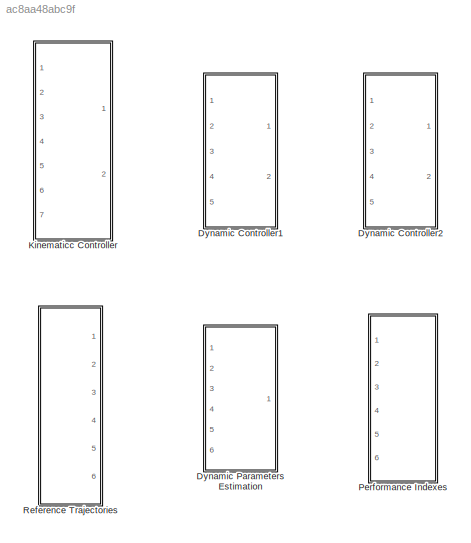
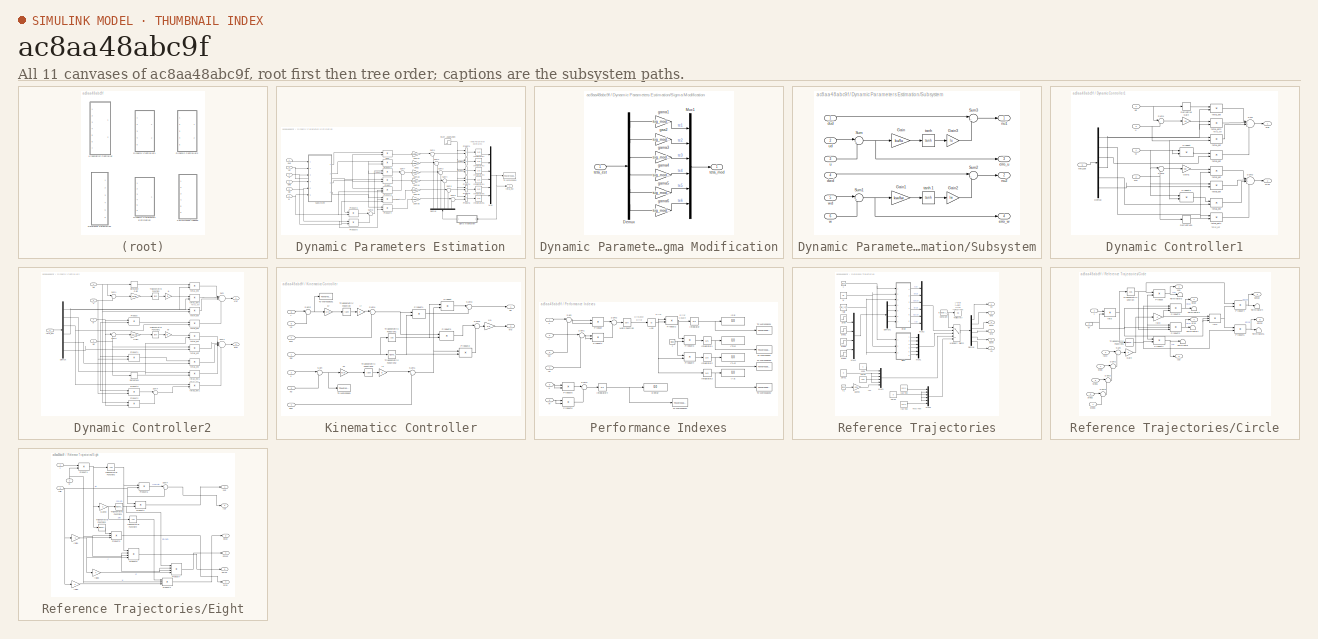
[diagram: thumbnail index - all 11 canvases of the model, root first then tree order]
MODEL slx_ac8aa48abc9f
KIND library
BLOCK [SubSystem] Dynamic Controller1
  FunctionWithSeparateData = off
  MaskHideContents = off
  MinAlgLoopOccurrences = off
  Opaque = off
  Ports = [5, 2]
  PropExecContextOutsideSubsystem = off
  RTWSystemCode = Auto
  RequestExecContextInheritance = off
BLOCK [Demux] Dynamic Controller1/Demux
  Outputs = 6
  Ports = [1, 6]
BLOCK [Derivative] Dynamic Controller1/Derivative
BLOCK [Derivative] Dynamic Controller1/Derivative1
BLOCK [Gain] Dynamic Controller1/Gain
  Gain = ku
BLOCK [Gain] Dynamic Controller1/Gain1
  Gain = kw
BLOCK [Product] Dynamic Controller1/Product
  InputSameDT = off
  Ports = [2, 1]
  RndMeth = Floor
BLOCK [Product] Dynamic Controller1/Product1
  InputSameDT = off
  Ports = [2, 1]
  RndMeth = Floor
BLOCK [Sum] Dynamic Controller1/Sum
  IconShape = round
  InputSameDT = off
  Inputs = |+++-
  OutDataTypeStr = Inherit: Inherit via internal rule
  Ports = [4, 1]
BLOCK [Sum] Dynamic Controller1/Sum1
  IconShape = round
  InputSameDT = off
  Inputs = |+-
  OutDataTypeStr = Inherit: Inherit via internal rule
  Ports = [2, 1]
BLOCK [Sum] Dynamic Controller1/Sum2
  IconShape = round
  InputSameDT = off
  Inputs = |++++
  OutDataTypeStr = Inherit: Inherit via internal rule
  Ports = [4, 1]
BLOCK [Sum] Dynamic Controller1/Sum3
  IconShape = round
  InputSameDT = off
  Inputs = |-+
  OutDataTypeStr = Inherit: Inherit via internal rule
  Ports = [2, 1]
BLOCK [Product] Dynamic Controller1/teta1_est
  InputSameDT = off
  Ports = [2, 1]
  RndMeth = Floor
BLOCK [Product] Dynamic Controller1/teta1_est2
  InputSameDT = off
  Ports = [2, 1]
  RndMeth = Floor
BLOCK [Product] Dynamic Controller1/teta2_est
  InputSameDT = off
  Ports = [2, 1]
  RndMeth = Floor
BLOCK [Product] Dynamic Controller1/teta2_est1
  InputSameDT = off
  Ports = [2, 1]
  RndMeth = Floor
BLOCK [Product] Dynamic Controller1/teta3_est
  InputSameDT = off
  Ports = [2, 1]
  RndMeth = Floor
BLOCK [Product] Dynamic Controller1/teta4_est
  InputSameDT = off
  Ports = [2, 1]
  RndMeth = Floor
BLOCK [Product] Dynamic Controller1/teta5_est
  InputSameDT = off
  Ports = [2, 1]
  RndMeth = Floor
BLOCK [Product] Dynamic Controller1/teta6_est
  InputSameDT = off
  Ports = [2, 1]
  RndMeth = Floor
BLOCK [Inport] Dynamic Controller1/teta_est
  IconDisplay = Port number
  Port = 5
BLOCK [Inport] Dynamic Controller1/u
  IconDisplay = Port number
  Port = 3
BLOCK [Inport] Dynamic Controller1/ud
  IconDisplay = Port number
BLOCK [Outport] Dynamic Controller1/uref
  IconDisplay = Port number
BLOCK [Inport] Dynamic Controller1/w
  IconDisplay = Port number
  Port = 4
BLOCK [Inport] Dynamic Controller1/wd
  IconDisplay = Port number
  Port = 2
BLOCK [Outport] Dynamic Controller1/wref
  IconDisplay = Port number
  Port = 2
BLOCK [SubSystem] Dynamic Controller2
  FunctionWithSeparateData = off
  MaskHideContents = off
  MinAlgLoopOccurrences = off
  Opaque = off
  Ports = [5, 2]
  PropExecContextOutsideSubsystem = off
  RTWSystemCode = Auto
  RequestExecContextInheritance = off
BLOCK [Demux] Dynamic Controller2/Demux
  Outputs = 6
  Ports = [1, 6]
BLOCK [Derivative] Dynamic Controller2/Derivative
BLOCK [Derivative] Dynamic Controller2/Derivative1
BLOCK [Gain] Dynamic Controller2/Gain
  Gain = ku/lu
BLOCK [Gain] Dynamic Controller2/Gain1
  Gain = kw/lw
BLOCK [Product] Dynamic Controller2/Product
  InputSameDT = off
  Ports = [2, 1]
  RndMeth = Floor
BLOCK [Product] Dynamic Controller2/Product1
  InputSameDT = off
  Ports = [2, 1]
  RndMeth = Floor
BLOCK [Product] Dynamic Controller2/Product2
  InputSameDT = off
  Ports = [2, 1]
  RndMeth = Floor
BLOCK [Product] Dynamic Controller2/Product3
  InputSameDT = off
  Ports = [2, 1]
  RndMeth = Floor
BLOCK [Sum] Dynamic Controller2/Sum
  IconShape = round
  InputSameDT = off
  Inputs = |+++-
  OutDataTypeStr = Inherit: Inherit via internal rule
  Ports = [4, 1]
BLOCK [Sum] Dynamic Controller2/Sum1
  IconShape = round
  InputSameDT = off
  Inputs = |+-
  OutDataTypeStr = Inherit: Inherit via internal rule
  Ports = [2, 1]
BLOCK [Sum] Dynamic Controller2/Sum2
  IconShape = round
  InputSameDT = off
  Inputs = |+++++
  OutDataTypeStr = Inherit: Inherit via internal rule
  Ports = [5, 1]
BLOCK [Sum] Dynamic Controller2/Sum3
  IconShape = round
  InputSameDT = off
  Inputs = |-+
  OutDataTypeStr = Inherit: Inherit via internal rule
  Ports = [2, 1]
BLOCK [Sum] Dynamic Controller2/Sum4
  IconShape = round
  InputSameDT = off
  Inputs = |-+
  OutDataTypeStr = Inherit: Inherit via internal rule
  Ports = [2, 1]
BLOCK [Trigonometry] Dynamic Controller2/Trigonometric Function
  Operator = tanh
  Ports = [1, 1]
BLOCK [Trigonometry] Dynamic Controller2/Trigonometric Function1
  Operator = tanh
  Ports = [1, 1]
BLOCK [Gain] Dynamic Controller2/lu
  Gain = lu
BLOCK [Gain] Dynamic Controller2/lw
  Gain = lw
BLOCK [Product] Dynamic Controller2/teta1_est
  InputSameDT = off
  Ports = [2, 1]
  RndMeth = Floor
BLOCK [Product] Dynamic Controller2/teta1_est2
  InputSameDT = off
  Ports = [2, 1]
  RndMeth = Floor
BLOCK [Product] Dynamic Controller2/teta2_est
  InputSameDT = off
  Ports = [2, 1]
  RndMeth = Floor
BLOCK [Product] Dynamic Controller2/teta2_est1
  InputSameDT = off
  Ports = [2, 1]
  RndMeth = Floor
BLOCK [Product] Dynamic Controller2/teta3_est
  InputSameDT = off
  Ports = [2, 1]
  RndMeth = Floor
BLOCK [Product] Dynamic Controller2/teta3_est1
  InputSameDT = off
  Ports = [2, 1]
  RndMeth = Floor
BLOCK [Product] Dynamic Controller2/teta4_est
  InputSameDT = off
  Ports = [2, 1]
  RndMeth = Floor
BLOCK [Product] Dynamic Controller2/teta5_est
  InputSameDT = off
  Ports = [2, 1]
  RndMeth = Floor
BLOCK [Product] Dynamic Controller2/teta6_est
  InputSameDT = off
  Ports = [2, 1]
  RndMeth = Floor
BLOCK [Inport] Dynamic Controller2/teta_est
  IconDisplay = Port number
  Port = 5
BLOCK [Inport] Dynamic Controller2/u
  IconDisplay = Port number
  Port = 3
BLOCK [Inport] Dynamic Controller2/ud
  IconDisplay = Port number
BLOCK [Outport] Dynamic Controller2/uref
  IconDisplay = Port number
BLOCK [Inport] Dynamic Controller2/w
  IconDisplay = Port number
  Port = 4
BLOCK [Inport] Dynamic Controller2/wd
  IconDisplay = Port number
  Port = 2
BLOCK [Outport] Dynamic Controller2/wref
  IconDisplay = Port number
  Port = 2
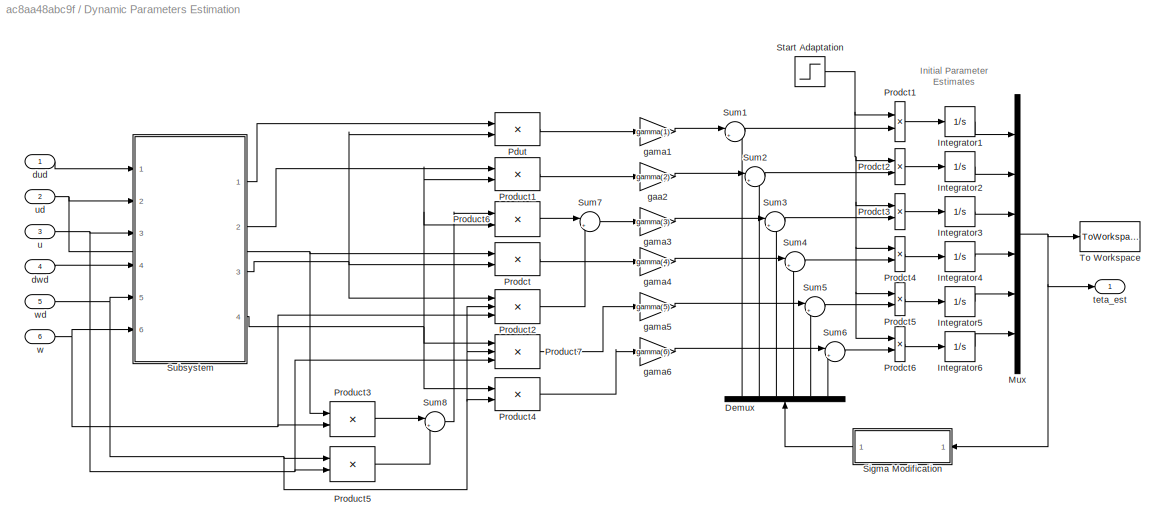
BLOCK [SubSystem] Dynamic Parameters Estimation
  FunctionWithSeparateData = off
  MaskHideContents = off
  MinAlgLoopOccurrences = off
  Opaque = off
  Ports = [6, 1]
  PropExecContextOutsideSubsystem = off
  RTWSystemCode = Auto
  RequestExecContextInheritance = off
BLOCK [Demux] Dynamic Parameters Estimation/Demux
  DisplayOption = bar
  Outputs = 6
  Ports = [1, 6]
BLOCK [Integrator] Dynamic Parameters Estimation/Integrator1
  InitialCondition = theta(1)
  Ports = [1, 1]
BLOCK [Integrator] Dynamic Parameters Estimation/Integrator2
  InitialCondition = theta(2)
  Ports = [1, 1]
BLOCK [Integrator] Dynamic Parameters Estimation/Integrator3
  InitialCondition = theta(3)
  Ports = [1, 1]
BLOCK [Integrator] Dynamic Parameters Estimation/Integrator4
  InitialCondition = theta(4)
  Ports = [1, 1]
BLOCK [Integrator] Dynamic Parameters Estimation/Integrator5
  InitialCondition = theta(5)
  Ports = [1, 1]
BLOCK [Integrator] Dynamic Parameters Estimation/Integrator6
  InitialCondition = theta(6)
  Ports = [1, 1]
BLOCK [Mux] Dynamic Parameters Estimation/Mux
  DisplayOption = bar
  Inputs = 6
  Ports = [6, 1]
BLOCK [Product] Dynamic Parameters Estimation/Pdut
  InputSameDT = off
  Ports = [2, 1]
  RndMeth = Floor
BLOCK [Product] Dynamic Parameters Estimation/Prodct
  InputSameDT = off
  Ports = [2, 1]
  RndMeth = Floor
BLOCK [Product] Dynamic Parameters Estimation/Prodct1
  InputSameDT = off
  Ports = [2, 1]
  RndMeth = Floor
BLOCK [Product] Dynamic Parameters Estimation/Prodct2
  InputSameDT = off
  Ports = [2, 1]
  RndMeth = Floor
BLOCK [Product] Dynamic Parameters Estimation/Prodct3
  InputSameDT = off
  Ports = [2, 1]
  RndMeth = Floor
BLOCK [Product] Dynamic Parameters Estimation/Prodct4
  InputSameDT = off
  Ports = [2, 1]
  RndMeth = Floor
BLOCK [Product] Dynamic Parameters Estimation/Prodct5
  InputSameDT = off
  Ports = [2, 1]
  RndMeth = Floor
BLOCK [Product] Dynamic Parameters Estimation/Prodct6
  InputSameDT = off
  Ports = [2, 1]
  RndMeth = Floor
BLOCK [Product] Dynamic Parameters Estimation/Product1
  InputSameDT = off
  Ports = [2, 1]
  RndMeth = Floor
BLOCK [Product] Dynamic Parameters Estimation/Product2
  InputSameDT = off
  Inputs = 3
  Ports = [3, 1]
  RndMeth = Floor
BLOCK [Product] Dynamic Parameters Estimation/Product3
  InputSameDT = off
  Ports = [2, 1]
  RndMeth = Floor
BLOCK [Product] Dynamic Parameters Estimation/Product4
  InputSameDT = off
  Ports = [2, 1]
  RndMeth = Floor
BLOCK [Product] Dynamic Parameters Estimation/Product5
  InputSameDT = off
  Ports = [2, 1]
  RndMeth = Floor
BLOCK [Product] Dynamic Parameters Estimation/Product6
  InputSameDT = off
  Ports = [2, 1]
  RndMeth = Floor
BLOCK [Product] Dynamic Parameters Estimation/Product7
  InputSameDT = off
  Inputs = 3
  Ports = [3, 1]
  RndMeth = Floor
BLOCK [SubSystem] Dynamic Parameters Estimation/Sigma Modification
  FunctionWithSeparateData = off
  MaskHideContents = off
  MinAlgLoopOccurrences = off
  Opaque = off
  Ports = [1, 1]
  PropExecContextOutsideSubsystem = off
  RTWSystemCode = Auto
  RequestExecContextInheritance = off
BLOCK [Demux] Dynamic Parameters Estimation/Sigma Modification/Demux
  Outputs = 6
  Ports = [1, 6]
BLOCK [Mux] Dynamic Parameters Estimation/Sigma Modification/Mux1
  DisplayOption = bar
  Inputs = 6
  Ports = [6, 1]
BLOCK [Gain] Dynamic Parameters Estimation/Sigma Modification/gaa2
  Gain = sig_mod(2)
BLOCK [Gain] Dynamic Parameters Estimation/Sigma Modification/gama1
  Gain = sig_mod(1)
BLOCK [Gain] Dynamic Parameters Estimation/Sigma Modification/gama3
  Gain = sig_mod(3)
BLOCK [Gain] Dynamic Parameters Estimation/Sigma Modification/gama4
  Gain = sig_mod(4)
BLOCK [Gain] Dynamic Parameters Estimation/Sigma Modification/gama5
  Gain = sig_mod(5)
BLOCK [Gain] Dynamic Parameters Estimation/Sigma Modification/gama6
  Gain = sig_mod(6)
BLOCK [Inport] Dynamic Parameters Estimation/Sigma Modification/teta_est
  IconDisplay = Port number
BLOCK [Outport] Dynamic Parameters Estimation/Sigma Modification/teta_mod
  IconDisplay = Port number
BLOCK [Step] Dynamic Parameters Estimation/Start Adaptation
  SampleTime = 0
  Time = inicia_adapt
BLOCK [SubSystem] Dynamic Parameters Estimation/Subsystem
  FunctionWithSeparateData = off
  MaskHideContents = off
  MinAlgLoopOccurrences = off
  Opaque = off
  Ports = [6, 4]
  PropExecContextOutsideSubsystem = off
  RTWSystemCode = Auto
  RequestExecContextInheritance = off
BLOCK [Gain] Dynamic Parameters Estimation/Subsystem/Gain
  Gain = ku/lu
BLOCK [Gain] Dynamic Parameters Estimation/Subsystem/Gain1
  Gain = kw/lw
BLOCK [Gain] Dynamic Parameters Estimation/Subsystem/Gain2
  Gain = lw
BLOCK [Gain] Dynamic Parameters Estimation/Subsystem/Gain3
  Gain = lu
BLOCK [Sum] Dynamic Parameters Estimation/Subsystem/Sum
  IconShape = round
  InputSameDT = off
  Inputs = |+-
  OutDataTypeStr = Inherit: Inherit via internal rule
  Ports = [2, 1]
BLOCK [Sum] Dynamic Parameters Estimation/Subsystem/Sum1
  IconShape = round
  InputSameDT = off
  Inputs = |+-
  OutDataTypeStr = Inherit: Inherit via internal rule
  Ports = [2, 1]
BLOCK [Sum] Dynamic Parameters Estimation/Subsystem/Sum2
  IconShape = round
  InputSameDT = off
  Inputs = |++
  OutDataTypeStr = Inherit: Inherit via internal rule
  Ports = [2, 1]
BLOCK [Sum] Dynamic Parameters Estimation/Subsystem/Sum3
  IconShape = round
  InputSameDT = off
  Inputs = |++
  OutDataTypeStr = Inherit: Inherit via internal rule
  Ports = [2, 1]
BLOCK [Inport] Dynamic Parameters Estimation/Subsystem/dud
  IconDisplay = Port number
BLOCK [Inport] Dynamic Parameters Estimation/Subsystem/dwd
  IconDisplay = Port number
  Port = 4
BLOCK [Outport] Dynamic Parameters Estimation/Subsystem/erro_u
  IconDisplay = Port number
  Port = 3
BLOCK [Outport] Dynamic Parameters Estimation/Subsystem/erro_w
  IconDisplay = Port number
  Port = 4
BLOCK [Outport] Dynamic Parameters Estimation/Subsystem/nu1
  IconDisplay = Port number
BLOCK [Outport] Dynamic Parameters Estimation/Subsystem/nu2
  IconDisplay = Port number
  Port = 2
BLOCK [Trigonometry] Dynamic Parameters Estimation/Subsystem/tanh 
  Operator = tanh
  Ports = [1, 1]
BLOCK [Trigonometry] Dynamic Parameters Estimation/Subsystem/tanh 1
  Operator = tanh
  Ports = [1, 1]
BLOCK [Inport] Dynamic Parameters Estimation/Subsystem/u
  IconDisplay = Port number
  Port = 3
BLOCK [Inport] Dynamic Parameters Estimation/Subsystem/ud
  IconDisplay = Port number
  Port = 2
BLOCK [Inport] Dynamic Parameters Estimation/Subsystem/w
  IconDisplay = Port number
  Port = 6
BLOCK [Inport] Dynamic Parameters Estimation/Subsystem/wd
  IconDisplay = Port number
  Port = 5
BLOCK [Sum] Dynamic Parameters Estimation/Sum1
  IconShape = round
  InputSameDT = off
  Inputs = |+-
  OutDataTypeStr = Inherit: Inherit via internal rule
  Ports = [2, 1]
BLOCK [Sum] Dynamic Parameters Estimation/Sum2
  IconShape = round
  InputSameDT = off
  Inputs = |+-
  OutDataTypeStr = Inherit: Inherit via internal rule
  Ports = [2, 1]
BLOCK [Sum] Dynamic Parameters Estimation/Sum3
  IconShape = round
  InputSameDT = off
  Inputs = |+-
  OutDataTypeStr = Inherit: Inherit via internal rule
  Ports = [2, 1]
BLOCK [Sum] Dynamic Parameters Estimation/Sum4
  IconShape = round
  InputSameDT = off
  Inputs = |+-
  OutDataTypeStr = Inherit: Inherit via internal rule
  Ports = [2, 1]
BLOCK [Sum] Dynamic Parameters Estimation/Sum5
  IconShape = round
  InputSameDT = off
  Inputs = |+-
  OutDataTypeStr = Inherit: Inherit via internal rule
  Ports = [2, 1]
BLOCK [Sum] Dynamic Parameters Estimation/Sum6
  IconShape = round
  InputSameDT = off
  Inputs = |+-
  OutDataTypeStr = Inherit: Inherit via internal rule
  Ports = [2, 1]
BLOCK [Sum] Dynamic Parameters Estimation/Sum7
  IconShape = round
  InputSameDT = off
  Inputs = |+-
  OutDataTypeStr = Inherit: Inherit via internal rule
  Ports = [2, 1]
BLOCK [Sum] Dynamic Parameters Estimation/Sum8
  IconShape = round
  InputSameDT = off
  Inputs = |+-
  OutDataTypeStr = Inherit: Inherit via internal rule
  Ports = [2, 1]
BLOCK [ToWorkspace] Dynamic Parameters Estimation/To Workspace
  MaxDataPoints = inf
  Ports = [1]
  SampleTime = -1
  VariableName = teta_est
BLOCK [Inport] Dynamic Parameters Estimation/dud
  IconDisplay = Port number
BLOCK [Inport] Dynamic Parameters Estimation/dwd
  IconDisplay = Port number
  Port = 4
BLOCK [Gain] Dynamic Parameters Estimation/gaa2
  Gain = gamma(2)
BLOCK [Gain] Dynamic Parameters Estimation/gama1
  Gain = gamma(1)
BLOCK [Gain] Dynamic Parameters Estimation/gama3
  Gain = gamma(3)
BLOCK [Gain] Dynamic Parameters Estimation/gama4
  Gain = gamma(4)
BLOCK [Gain] Dynamic Parameters Estimation/gama5
  Gain = gamma(5)
BLOCK [Gain] Dynamic Parameters Estimation/gama6
  Gain = gamma(6)
BLOCK [Outport] Dynamic Parameters Estimation/teta_est
  IconDisplay = Port number
BLOCK [Inport] Dynamic Parameters Estimation/u
  IconDisplay = Port number
  Port = 3
BLOCK [Inport] Dynamic Parameters Estimation/ud
  IconDisplay = Port number
  Port = 2
BLOCK [Inport] Dynamic Parameters Estimation/w
  IconDisplay = Port number
  Port = 6
BLOCK [Inport] Dynamic Parameters Estimation/wd
  IconDisplay = Port number
  Port = 5
BLOCK [SubSystem] Kinematicc Controller
  FunctionWithSeparateData = off
  MaskHideContents = off
  MinAlgLoopOccurrences = off
  Opaque = off
  Ports = [7, 2]
  PropExecContextOutsideSubsystem = off
  RTWSystemCode = Auto
  RequestExecContextInheritance = off
BLOCK [Gain] Kinematicc Controller/1//a
  Gain = 1/a
BLOCK [Product] Kinematicc Controller/Product
  InputSameDT = off
  Ports = [2, 1]
  RndMeth = Floor
BLOCK [Product] Kinematicc Controller/Product1
  InputSameDT = off
  Ports = [2, 1]
  RndMeth = Floor
BLOCK [Product] Kinematicc Controller/Product2
  InputSameDT = off
  Ports = [2, 1]
  RndMeth = Floor
BLOCK [Product] Kinematicc Controller/Product3
  InputSameDT = off
  Ports = [2, 1]
  RndMeth = Floor
BLOCK [Sum] Kinematicc Controller/Sum
  IconShape = round
  InputSameDT = off
  Inputs = |-+
  OutDataTypeStr = Inherit: Inherit via internal rule
  Ports = [2, 1]
BLOCK [Sum] Kinematicc Controller/Sum1
  IconShape = round
  InputSameDT = off
  Inputs = |++
  OutDataTypeStr = Inherit: Inherit via internal rule
  Ports = [2, 1]
BLOCK [Sum] Kinematicc Controller/Sum2
  IconShape = round
  InputSameDT = off
  Inputs = |-+
  OutDataTypeStr = Inherit: Inherit via internal rule
  Ports = [2, 1]
BLOCK [Sum] Kinematicc Controller/Sum3
  IconShape = round
  InputSameDT = off
  Inputs = |++
  OutDataTypeStr = Inherit: Inherit via internal rule
  Ports = [2, 1]
BLOCK [Sum] Kinematicc Controller/Sum4
  IconShape = round
  InputSameDT = off
  Inputs = |++
  OutDataTypeStr = Inherit: Inherit via internal rule
  Ports = [2, 1]
BLOCK [Sum] Kinematicc Controller/Sum5
  IconShape = round
  InputSameDT = off
  Inputs = |+-
  OutDataTypeStr = Inherit: Inherit via internal rule
  Ports = [2, 1]
BLOCK [ToWorkspace] Kinematicc Controller/To Workspace
  MaxDataPoints = inf
  Ports = [1]
  SampleTime = -1
  VariableName = erro_x1c
BLOCK [ToWorkspace] Kinematicc Controller/To Workspace1
  MaxDataPoints = inf
  Ports = [1]
  SampleTime = -1
  VariableName = erro_y1c
BLOCK [Trigonometry] Kinematicc Controller/Trigonometric Function
  Operator = tanh
  Ports = [1, 1]
BLOCK [Trigonometry] Kinematicc Controller/Trigonometric Function1
  Operator = cos
  Ports = [1, 1]
BLOCK [Trigonometry] Kinematicc Controller/Trigonometric Function2
  Ports = [1, 1]
BLOCK [Trigonometry] Kinematicc Controller/Trigonometric Function3
  Operator = tanh
  Ports = [1, 1]
BLOCK [Inport] Kinematicc Controller/dxd
  IconDisplay = Port number
  Port = 4
BLOCK [Inport] Kinematicc Controller/dyd
  IconDisplay = Port number
  Port = 7
BLOCK [Gain] Kinematicc Controller/kx
  Gain = kx/lx
BLOCK [Gain] Kinematicc Controller/ky
  Gain = ky/ly
BLOCK [Gain] Kinematicc Controller/lx
  Gain = lx
BLOCK [Gain] Kinematicc Controller/ly
  Gain = ly
BLOCK [Inport] Kinematicc Controller/psi
  IconDisplay = Port number
BLOCK [Outport] Kinematicc Controller/ud
  IconDisplay = Port number
BLOCK [Outport] Kinematicc Controller/wd
  IconDisplay = Port number
  Port = 2
BLOCK [Inport] Kinematicc Controller/x
  IconDisplay = Port number
  Port = 2
BLOCK [Inport] Kinematicc Controller/xd
  IconDisplay = Port number
  Port = 3
BLOCK [Inport] Kinematicc Controller/y
  IconDisplay = Port number
  Port = 5
BLOCK [Inport] Kinematicc Controller/yd
  IconDisplay = Port number
  Port = 6
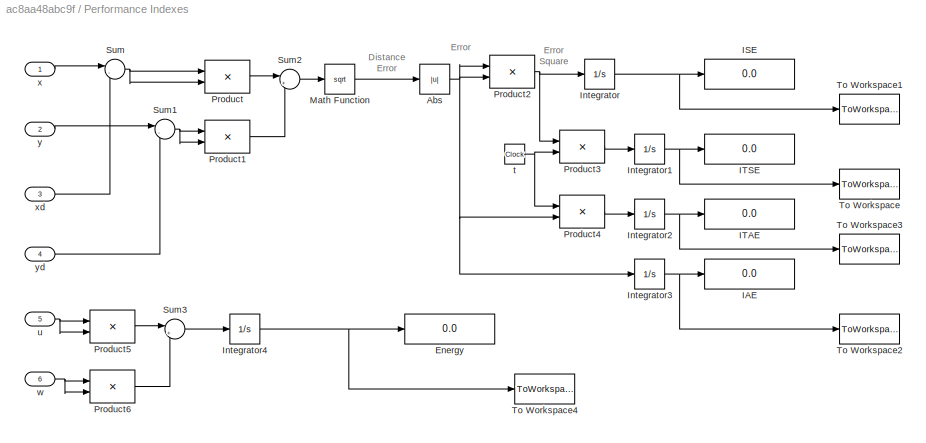
BLOCK [SubSystem] Performance Indexes
  FunctionWithSeparateData = off
  MaskHideContents = off
  MinAlgLoopOccurrences = off
  Opaque = off
  Ports = [6]
  PropExecContextOutsideSubsystem = off
  RTWSystemCode = Auto
  RequestExecContextInheritance = off
BLOCK [Abs] Performance Indexes/Abs
BLOCK [Display] Performance Indexes/Energy
  Decimation = 1
  Lockdown = off
  Ports = [1]
BLOCK [Display] Performance Indexes/IAE
  Decimation = 1
  Lockdown = off
  Ports = [1]
BLOCK [Display] Performance Indexes/ISE
  Decimation = 1
  Lockdown = off
  Ports = [1]
BLOCK [Display] Performance Indexes/ITAE
  Decimation = 1
  Lockdown = off
  Ports = [1]
BLOCK [Display] Performance Indexes/ITSE
  Decimation = 1
  Lockdown = off
  Ports = [1]
BLOCK [Integrator] Performance Indexes/Integrator
  Ports = [1, 1]
BLOCK [Integrator] Performance Indexes/Integrator1
  Ports = [1, 1]
BLOCK [Integrator] Performance Indexes/Integrator2
  Ports = [1, 1]
BLOCK [Integrator] Performance Indexes/Integrator3
  Ports = [1, 1]
BLOCK [Integrator] Performance Indexes/Integrator4
  Ports = [1, 1]
BLOCK [Math] Performance Indexes/Math Function
  Operator = sqrt
  Ports = [1, 1]
BLOCK [Product] Performance Indexes/Product
  InputSameDT = off
  Ports = [2, 1]
  RndMeth = Floor
BLOCK [Product] Performance Indexes/Product1
  InputSameDT = off
  Ports = [2, 1]
  RndMeth = Floor
BLOCK [Product] Performance Indexes/Product2
  InputSameDT = off
  Ports = [2, 1]
  RndMeth = Floor
BLOCK [Product] Performance Indexes/Product3
  InputSameDT = off
  Ports = [2, 1]
  RndMeth = Floor
BLOCK [Product] Performance Indexes/Product4
  InputSameDT = off
  Ports = [2, 1]
  RndMeth = Floor
BLOCK [Product] Performance Indexes/Product5
  InputSameDT = off
  Ports = [2, 1]
  RndMeth = Floor
BLOCK [Product] Performance Indexes/Product6
  InputSameDT = off
  Ports = [2, 1]
  RndMeth = Floor
BLOCK [Sum] Performance Indexes/Sum
  IconShape = round
  InputSameDT = off
  Inputs = |-+
  OutDataTypeStr = Inherit: Inherit via internal rule
  Ports = [2, 1]
BLOCK [Sum] Performance Indexes/Sum1
  IconShape = round
  InputSameDT = off
  Inputs = |-+
  OutDataTypeStr = Inherit: Inherit via internal rule
  Ports = [2, 1]
BLOCK [Sum] Performance Indexes/Sum2
  IconShape = round
  InputSameDT = off
  Inputs = |++
  OutDataTypeStr = Inherit: Inherit via internal rule
  Ports = [2, 1]
BLOCK [Sum] Performance Indexes/Sum3
  IconShape = round
  InputSameDT = off
  Inputs = |++
  OutDataTypeStr = Inherit: Inherit via internal rule
  Ports = [2, 1]
BLOCK [ToWorkspace] Performance Indexes/To Workspace
  MaxDataPoints = inf
  Ports = [1]
  SampleTime = -1
  VariableName = itse
BLOCK [ToWorkspace] Performance Indexes/To Workspace1
  MaxDataPoints = inf
  Ports = [1]
  SampleTime = -1
  VariableName = ise
BLOCK [ToWorkspace] Performance Indexes/To Workspace2
  MaxDataPoints = inf
  Ports = [1]
  SampleTime = -1
  VariableName = iae
BLOCK [ToWorkspace] Performance Indexes/To Workspace3
  MaxDataPoints = inf
  Ports = [1]
  SampleTime = -1
  VariableName = itae
BLOCK [ToWorkspace] Performance Indexes/To Workspace4
  MaxDataPoints = inf
  Ports = [1]
  SampleTime = -1
  VariableName = energy
BLOCK [Clock] Performance Indexes/t
BLOCK [Inport] Performance Indexes/u
  IconDisplay = Port number
  Port = 5
BLOCK [Inport] Performance Indexes/w
  IconDisplay = Port number
  Port = 6
BLOCK [Inport] Performance Indexes/x
  IconDisplay = Port number
BLOCK [Inport] Performance Indexes/xd
  IconDisplay = Port number
  Port = 3
BLOCK [Inport] Performance Indexes/y
  IconDisplay = Port number
  Port = 2
BLOCK [Inport] Performance Indexes/yd
  IconDisplay = Port number
  Port = 4
BLOCK [SubSystem] Reference Trajectories
  FunctionWithSeparateData = off
  MaskHideContents = off
  MinAlgLoopOccurrences = off
  Opaque = off
  Ports = [0, 6]
  PropExecContextOutsideSubsystem = off
  RTWSystemCode = Auto
  RequestExecContextInheritance = off
BLOCK [SubSystem] Reference Trajectories/Circle
  FunctionWithSeparateData = off
  MaskHideContents = off
  MinAlgLoopOccurrences = off
  Opaque = off
  Ports = [7, 6]
  PropExecContextOutsideSubsystem = off
  RTWSystemCode = Auto
  RequestExecContextInheritance = off
BLOCK [Gain] Reference Trajectories/Circle/-raio
  Gain = -1
BLOCK [Product] Reference Trajectories/Circle/-rw2
  InputSameDT = off
  Inputs = 3
  Ports = [3, 1]
  RndMeth = Floor
BLOCK [Gain] Reference Trajectories/Circle/Gain
BLOCK [Product] Reference Trajectories/Circle/Product
  InputSameDT = off
  Ports = [2, 1]
  RndMeth = Floor
BLOCK [Product] Reference Trajectories/Circle/Product1
  InputSameDT = off
  Ports = [2, 1]
  RndMeth = Floor
BLOCK [Product] Reference Trajectories/Circle/Product2
  InputSameDT = off
  Inputs = 3
  Ports = [3, 1]
  RndMeth = Floor
BLOCK [Product] Reference Trajectories/Circle/Product3
  InputSameDT = off
  Inputs = 3
  Ports = [3, 1]
  RndMeth = Floor
BLOCK [Product] Reference Trajectories/Circle/Product4
  InputSameDT = off
  Ports = [2, 1]
  RndMeth = Floor
BLOCK [Product] Reference Trajectories/Circle/Product5
  InputSameDT = off
  Ports = [2, 1]
  RndMeth = Floor
BLOCK [Sum] Reference Trajectories/Circle/Sum
  IconShape = round
  InputSameDT = off
  Inputs = |++
  OutDataTypeStr = Inherit: Inherit via internal rule
  Ports = [2, 1]
BLOCK [Sum] Reference Trajectories/Circle/Sum1
  IconShape = round
  InputSameDT = off
  Inputs = |++
  OutDataTypeStr = Inherit: Inherit via internal rule
  Ports = [2, 1]
BLOCK [Sum] Reference Trajectories/Circle/Sum2
  IconShape = round
  InputSameDT = off
  Inputs = |++
  OutDataTypeStr = Inherit: Inherit via internal rule
  Ports = [2, 1]
BLOCK [Sum] Reference Trajectories/Circle/Sum3
  IconShape = round
  InputSameDT = off
  Inputs = |++
  OutDataTypeStr = Inherit: Inherit via internal rule
  Ports = [2, 1]
BLOCK [Terminator] Reference Trajectories/Circle/Terminator
BLOCK [Terminator] Reference Trajectories/Circle/Terminator1
BLOCK [Terminator] Reference Trajectories/Circle/Terminator2
BLOCK [Terminator] Reference Trajectories/Circle/Terminator3
BLOCK [Terminator] Reference Trajectories/Circle/Terminator4
BLOCK [Terminator] Reference Trajectories/Circle/Terminator5
BLOCK [Trigonometry] Reference Trajectories/Circle/Trigonometric Function1
  Ports = [1, 1]
BLOCK [Trigonometry] Reference Trajectories/Circle/Trigonometric unction
  Operator = cos
  Ports = [1, 1]
BLOCK [Outport] Reference Trajectories/Circle/d2x1d
  IconDisplay = Port number
  Port = 3
BLOCK [Outport] Reference Trajectories/Circle/d2y1d
  IconDisplay = Port number
  Port = 5
BLOCK [Outport] Reference Trajectories/Circle/dx1d
  IconDisplay = Port number
  Port = 2
BLOCK [Outport] Reference Trajectories/Circle/dy1d
  IconDisplay = Port number
  Port = 4
BLOCK [Inport] Reference Trajectories/Circle/raio
  IconDisplay = Port number
  Port = 3
BLOCK [Inport] Reference Trajectories/Circle/step
  IconDisplay = Port number
  Port = 4
BLOCK [Inport] Reference Trajectories/Circle/step1
  IconDisplay = Port number
  Port = 5
BLOCK [Inport] Reference Trajectories/Circle/step2
  IconDisplay = Port number
  Port = 6
BLOCK [Inport] Reference Trajectories/Circle/step3
  IconDisplay = Port number
  Port = 7
BLOCK [Inport] Reference Trajectories/Circle/t
  IconDisplay = Port number
BLOCK [Product] Reference Trajectories/Circle/teta
  InputSameDT = off
  Ports = [2, 1]
  RndMeth = Floor
BLOCK [Inport] Reference Trajectories/Circle/w
  IconDisplay = Port number
  Port = 2
BLOCK [Outport] Reference Trajectories/Circle/x1d
  IconDisplay = Port number
BLOCK [Outport] Reference Trajectories/Circle/y1d
  IconDisplay = Port number
  Port = 6
BLOCK [Constant] Reference Trajectories/Constant
  Value = trajectory_type
BLOCK [Demux] Reference Trajectories/Demux
  Outputs = 6
  Ports = [1, 6]
BLOCK [Demux] Reference Trajectories/Demux1
  Ports = [1, 4]
BLOCK [SubSystem] Reference Trajectories/Eight
  FunctionWithSeparateData = off
  MaskHideContents = off
  MinAlgLoopOccurrences = off
  Opaque = off
  Ports = [3, 6]
  PropExecContextOutsideSubsystem = off
  RTWSystemCode = Auto
  RequestExecContextInheritance = off
BLOCK [Gain] Reference Trajectories/Eight/-raio1
  Gain = -1
BLOCK [Gain] Reference Trajectories/Eight/-raio2
  Gain = 2
BLOCK [Gain] Reference Trajectories/Eight/-raio3
  Gain = 4
BLOCK [Gain] Reference Trajectories/Eight/Ganho
  Gain = 2
BLOCK [Product] Reference Trajectories/Eight/Product1
  InputSameDT = off
  Ports = [2, 1]
  RndMeth = Floor
BLOCK [Product] Reference Trajectories/Eight/Product2
  InputSameDT = off
  Ports = [2, 1]
  RndMeth = Floor
BLOCK [Product] Reference Trajectories/Eight/Product3
  InputSameDT = off
  Inputs = 3
  Ports = [3, 1]
  RndMeth = Floor
BLOCK [Product] Reference Trajectories/Eight/Product4
  InputSameDT = off
  Inputs = 3
  Ports = [3, 1]
  RndMeth = Floor
BLOCK [Product] Reference Trajectories/Eight/Product5
  InputSameDT = off
  Inputs = 4
  Ports = [4, 1]
  RndMeth = Floor
BLOCK [Product] Reference Trajectories/Eight/Product6
  InputSameDT = off
  Ports = [2, 1]
  RndMeth = Floor
BLOCK [Product] Reference Trajectories/Eight/Product7
  InputSameDT = off
  Inputs = 4
  Ports = [4, 1]
  RndMeth = Floor
BLOCK [Sum] Reference Trajectories/Eight/Sum4
  IconShape = round
  InputSameDT = off
  Inputs = |+-
  OutDataTypeStr = Inherit: Inherit via internal rule
  Ports = [2, 1]
BLOCK [Trigonometry] Reference Trajectories/Eight/Trigonometric Function1
  Ports = [1, 1]
BLOCK [Trigonometry] Reference Trajectories/Eight/Trigonometric Function2
  Operator = cos
  Ports = [1, 1]
BLOCK [Trigonometry] Reference Trajectories/Eight/Trigonometric Function3
  Ports = [1, 1]
BLOCK [Trigonometry] Reference Trajectories/Eight/Trigonometric Function4
  Operator = cos
  Ports = [1, 1]
BLOCK [Outport] Reference Trajectories/Eight/d2x1d
  IconDisplay = Port number
  Port = 3
BLOCK [Outport] Reference Trajectories/Eight/d2y1d
  IconDisplay = Port number
  Port = 5
BLOCK [Outport] Reference Trajectories/Eight/dx1d
  IconDisplay = Port number
  Port = 2
BLOCK [Outport] Reference Trajectories/Eight/dy1d
  IconDisplay = Port number
  Port = 4
BLOCK [Inport] Reference Trajectories/Eight/raio
  IconDisplay = Port number
  Port = 3
BLOCK [Inport] Reference Trajectories/Eight/t
  IconDisplay = Port number
BLOCK [Inport] Reference Trajectories/Eight/w
  IconDisplay = Port number
  Port = 2
BLOCK [Outport] Reference Trajectories/Eight/x1d
  IconDisplay = Port number
BLOCK [Outport] Reference Trajectories/Eight/y1d
  IconDisplay = Port number
  Port = 6
BLOCK [MultiPortSwitch] Reference Trajectories/Multiport Switch
  InputSameDT = off
  Inputs = 4
  Ports = [5, 1]
BLOCK [Mux] Reference Trajectories/Mux1
  DisplayOption = bar
  Inputs = 6
  Ports = [6, 1]
BLOCK [Mux] Reference Trajectories/Mux2
  DisplayOption = bar
  Inputs = 6
  Ports = [6, 1]
BLOCK [Mux] Reference Trajectories/Mux3
  DisplayOption = bar
  Inputs = 6
  Ports = [6, 1]
BLOCK [Mux] Reference Trajectories/Mux4
  DisplayOption = bar
  Ports = [4, 1]
BLOCK [Mux] Reference Trajectories/Mux5
  DisplayOption = bar
  Inputs = 6
  Ports = [6, 1]
BLOCK [Step] Reference Trajectories/Step
  After = delta_raio
  SampleTime = 0
  Time = t_delta_raio
BLOCK [Step] Reference Trajectories/Step1
  After = -delta_raio
  SampleTime = 0
  Time = t_delta_raio*2
BLOCK [Step] Reference Trajectories/Step2
  After = delta_raio
  SampleTime = 0
  Time = t_delta_raio*3
BLOCK [Step] Reference Trajectories/Step3
  After = -delta_raio
  SampleTime = 0
  Time = t_delta_raio*4
BLOCK [Display] Reference Trajectories/Trajectory
  Decimation = 1
  Format = decimal (Stored Integer)
  Lockdown = off
  Ports = [1]
BLOCK [Outport] Reference Trajectories/d2xd
  IconDisplay = Port number
  Port = 3
BLOCK [Outport] Reference Trajectories/d2yd
  IconDisplay = Port number
  Port = 6
BLOCK [Outport] Reference Trajectories/dxd
  IconDisplay = Port number
  Port = 2
BLOCK [Outport] Reference Trajectories/dyd
  IconDisplay = Port number
  Port = 5
BLOCK [Gain] Reference Trajectories/ganho
  Gain = 0.25
BLOCK [Constant] Reference Trajectories/raio
  Value = raio_ref_1
BLOCK [Clock] Reference Trajectories/t
BLOCK [Clock] Reference Trajectories/t1
BLOCK [Constant] Reference Trajectories/w
  Value = wf
BLOCK [Constant] Reference Trajectories/x1d fixo
  Value = xd(1)
BLOCK [Constant] Reference Trajectories/x1d1
BLOCK [Outport] Reference Trajectories/xd
  IconDisplay = Port number
BLOCK [Constant] Reference Trajectories/y1d fixo
  Value = xd(2)
BLOCK [Outport] Reference Trajectories/yd
  IconDisplay = Port number
  Port = 4
BLOCK [Constant] Reference Trajectories/zero1
  Value = 0
BLOCK [Constant] Reference Trajectories/zero2
  Value = 0.25
BLOCK [Constant] Reference Trajectories/zero3
  Value = 0
ANNOTATION Dynamic Controller1: Teta1_est
ANNOTATION Dynamic Controller1: Teta2_est
ANNOTATION Dynamic Controller2: Teta1_est
ANNOTATION Dynamic Controller2: Teta2_est
ANNOTATION Dynamic Parameters Estimation: Initial Parameter Estimates
ANNOTATION Performance Indexes: Distance Error
ANNOTATION Performance Indexes: Error
ANNOTATION Performance Indexes: Error Square
ANNOTATION Reference Trajectories: 1=Circle 2=Eight 3=Line 4=Fixed Point
ANNOTATION Reference Trajectories: Fixed Point
ANNOTATION Reference Trajectories: Line
NET Dynamic Controller1/Demux:1 -> Dynamic Controller1/teta1_est2:2, Dynamic Controller1/teta1_est:2
NET Dynamic Controller1/Demux:2 -> Dynamic Controller1/teta2_est1:1, Dynamic Controller1/teta2_est:2
LINE Dynamic Controller1/Demux:3 -> Dynamic Controller1/teta3_est:2
LINE Dynamic Controller1/Demux:4 -> Dynamic Controller1/teta4_est:1
LINE Dynamic Controller1/Demux:5 -> Dynamic Controller1/teta5_est:2
LINE Dynamic Controller1/Demux:6 -> Dynamic Controller1/teta6_est:2
LINE Dynamic Controller1/Derivative1:1 -> Dynamic Controller1/teta2_est1:2
LINE Dynamic Controller1/Derivative:1 -> Dynamic Controller1/teta1_est:1
LINE Dynamic Controller1/Gain1:1 -> Dynamic Controller1/teta2_est:1
LINE Dynamic Controller1/Gain:1 -> Dynamic Controller1/teta1_est2:1
LINE Dynamic Controller1/Product1:1 -> Dynamic Controller1/teta5_est:1
LINE Dynamic Controller1/Product:1 -> Dynamic Controller1/teta3_est:1
LINE Dynamic Controller1/Sum1:1 -> Dynamic Controller1/Gain:1
LINE Dynamic Controller1/Sum2:1 -> Dynamic Controller1/wref:1
LINE Dynamic Controller1/Sum3:1 -> Dynamic Controller1/Gain1:1
LINE Dynamic Controller1/Sum:1 -> Dynamic Controller1/uref:1
LINE Dynamic Controller1/teta1_est2:1 -> Dynamic Controller1/Sum:2
LINE Dynamic Controller1/teta1_est:1 -> Dynamic Controller1/Sum:1
LINE Dynamic Controller1/teta2_est1:1 -> Dynamic Controller1/Sum2:4
LINE Dynamic Controller1/teta2_est:1 -> Dynamic Controller1/Sum2:1
LINE Dynamic Controller1/teta3_est:1 -> Dynamic Controller1/Sum:4
LINE Dynamic Controller1/teta4_est:1 -> Dynamic Controller1/Sum:3
LINE Dynamic Controller1/teta5_est:1 -> Dynamic Controller1/Sum2:3
LINE Dynamic Controller1/teta6_est:1 -> Dynamic Controller1/Sum2:2
LINE Dynamic Controller1/teta_est:1 -> Dynamic Controller1/Demux:1
NET Dynamic Controller1/u:1 -> Dynamic Controller1/Product1:2, Dynamic Controller1/Sum1:2, Dynamic Controller1/teta4_est:2
NET Dynamic Controller1/ud:1 -> Dynamic Controller1/Derivative:1, Dynamic Controller1/Sum1:1
NET Dynamic Controller1/w:1 -> Dynamic Controller1/Product1:1, Dynamic Controller1/Product:1, Dynamic Controller1/Product:2, Dynamic Controller1/Sum3:1, Dynamic Controller1/teta6_est:1
NET Dynamic Controller1/wd:1 -> Dynamic Controller1/Derivative1:1, Dynamic Controller1/Sum3:2
NET Dynamic Controller2/Demux:1 -> Dynamic Controller2/teta1_est2:2, Dynamic Controller2/teta1_est:2
NET Dynamic Controller2/Demux:2 -> Dynamic Controller2/teta2_est1:1, Dynamic Controller2/teta2_est:2
NET Dynamic Controller2/Demux:3 -> Dynamic Controller2/teta3_est1:1, Dynamic Controller2/teta3_est:2
LINE Dynamic Controller2/Demux:4 -> Dynamic Controller2/teta4_est:1
LINE Dynamic Controller2/Demux:5 -> Dynamic Controller2/teta5_est:2
LINE Dynamic Controller2/Demux:6 -> Dynamic Controller2/teta6_est:2
LINE Dynamic Controller2/Derivative1:1 -> Dynamic Controller2/teta2_est1:2
LINE Dynamic Controller2/Derivative:1 -> Dynamic Controller2/teta1_est:1
LINE Dynamic Controller2/Gain1:1 -> Dynamic Controller2/Trigonometric Function1:1
LINE Dynamic Controller2/Gain:1 -> Dynamic Controller2/Trigonometric Function:1
LINE Dynamic Controller2/Product1:1 -> Dynamic Controller2/teta5_est:1
LINE Dynamic Controller2/Product2:1 -> Dynamic Controller2/Sum4:2
LINE Dynamic Controller2/Product3:1 -> Dynamic Controller2/Sum4:1
LINE Dynamic Controller2/Product:1 -> Dynamic Controller2/teta3_est:1
LINE Dynamic Controller2/Sum1:1 -> Dynamic Controller2/Gain:1
LINE Dynamic Controller2/Sum2:1 -> Dynamic Controller2/wref:1
LINE Dynamic Controller2/Sum3:1 -> Dynamic Controller2/Gain1:1
LINE Dynamic Controller2/Sum4:1 -> Dynamic Controller2/teta3_est1:2
LINE Dynamic Controller2/Sum:1 -> Dynamic Controller2/uref:1
LINE Dynamic Controller2/Trigonometric Function1:1 -> Dynamic Controller2/lw:1
LINE Dynamic Controller2/Trigonometric Function:1 -> Dynamic Controller2/lu:1
LINE Dynamic Controller2/lu:1 -> Dynamic Controller2/teta1_est2:1
LINE Dynamic Controller2/lw:1 -> Dynamic Controller2/teta2_est:1
LINE Dynamic Controller2/teta1_est2:1 -> Dynamic Controller2/Sum:2
LINE Dynamic Controller2/teta1_est:1 -> Dynamic Controller2/Sum:1
LINE Dynamic Controller2/teta2_est1:1 -> Dynamic Controller2/Sum2:4
LINE Dynamic Controller2/teta2_est:1 -> Dynamic Controller2/Sum2:1
LINE Dynamic Controller2/teta3_est1:1 -> Dynamic Controller2/Sum2:5
LINE Dynamic Controller2/teta3_est:1 -> Dynamic Controller2/Sum:4
LINE Dynamic Controller2/teta4_est:1 -> Dynamic Controller2/Sum:3
LINE Dynamic Controller2/teta5_est:1 -> Dynamic Controller2/Sum2:3
LINE Dynamic Controller2/teta6_est:1 -> Dynamic Controller2/Sum2:2
LINE Dynamic Controller2/teta_est:1 -> Dynamic Controller2/Demux:1
NET Dynamic Controller2/u:1 -> Dynamic Controller2/Product1:2, Dynamic Controller2/Product3:2, Dynamic Controller2/Sum1:2
NET Dynamic Controller2/ud:1 -> Dynamic Controller2/Derivative:1, Dynamic Controller2/Product2:1, Dynamic Controller2/Sum1:1, Dynamic Controller2/teta4_est:2
NET Dynamic Controller2/w:1 -> Dynamic Controller2/Product2:2, Dynamic Controller2/Product:1, Dynamic Controller2/Sum3:1
NET Dynamic Controller2/wd:1 -> Dynamic Controller2/Derivative1:1, Dynamic Controller2/Product1:1, Dynamic Controller2/Product3:1, Dynamic Controller2/Product:2, Dynamic Controller2/Sum3:2, Dynamic Controller2/teta6_est:1
LINE Dynamic Parameters Estimation/Demux:1 -> Dynamic Parameters Estimation/Sum1:2
LINE Dynamic Parameters Estimation/Demux:2 -> Dynamic Parameters Estimation/Sum2:2
LINE Dynamic Parameters Estimation/Demux:3 -> Dynamic Parameters Estimation/Sum3:2
LINE Dynamic Parameters Estimation/Demux:4 -> Dynamic Parameters Estimation/Sum4:2
LINE Dynamic Parameters Estimation/Demux:5 -> Dynamic Parameters Estimation/Sum5:2
LINE Dynamic Parameters Estimation/Demux:6 -> Dynamic Parameters Estimation/Sum6:2
LINE Dynamic Parameters Estimation/Integrator1:1 -> Dynamic Parameters Estimation/Mux:1
LINE Dynamic Parameters Estimation/Integrator2:1 -> Dynamic Parameters Estimation/Mux:2
LINE Dynamic Parameters Estimation/Integrator3:1 -> Dynamic Parameters Estimation/Mux:3
LINE Dynamic Parameters Estimation/Integrator4:1 -> Dynamic Parameters Estimation/Mux:4
LINE Dynamic Parameters Estimation/Integrator5:1 -> Dynamic Parameters Estimation/Mux:5
LINE Dynamic Parameters Estimation/Integrator6:1 -> Dynamic Parameters Estimation/Mux:6
NET Dynamic Parameters Estimation/Mux:1 -> Dynamic Parameters Estimation/Sigma Modification:1, Dynamic Parameters Estimation/To Workspace:1, Dynamic Parameters Estimation/teta_est:1
LINE Dynamic Parameters Estimation/Pdut:1 -> Dynamic Parameters Estimation/gama1:1
LINE Dynamic Parameters Estimation/Prodct1:1 -> Dynamic Parameters Estimation/Integrator1:1
LINE Dynamic Parameters Estimation/Prodct2:1 -> Dynamic Parameters Estimation/Integrator2:1
LINE Dynamic Parameters Estimation/Prodct3:1 -> Dynamic Parameters Estimation/Integrator3:1
LINE Dynamic Parameters Estimation/Prodct4:1 -> Dynamic Parameters Estimation/Integrator4:1
LINE Dynamic Parameters Estimation/Prodct5:1 -> Dynamic Parameters Estimation/Integrator5:1
LINE Dynamic Parameters Estimation/Prodct6:1 -> Dynamic Parameters Estimation/Integrator6:1
LINE Dynamic Parameters Estimation/Prodct:1 -> Dynamic Parameters Estimation/gama4:1
LINE Dynamic Parameters Estimation/Product1:1 -> Dynamic Parameters Estimation/gaa2:1
LINE Dynamic Parameters Estimation/Product2:1 -> Dynamic Parameters Estimation/Sum7:2
LINE Dynamic Parameters Estimation/Product3:1 -> Dynamic Parameters Estimation/Sum8:1
LINE Dynamic Parameters Estimation/Product4:1 -> Dynamic Parameters Estimation/gama6:1
LINE Dynamic Parameters Estimation/Product5:1 -> Dynamic Parameters Estimation/Sum8:2
LINE Dynamic Parameters Estimation/Product6:1 -> Dynamic Parameters Estimation/Sum7:1
LINE Dynamic Parameters Estimation/Product7:1 -> Dynamic Parameters Estimation/gama5:1
LINE Dynamic Parameters Estimation/Sigma Modification/Demux:1 -> Dynamic Parameters Estimation/Sigma Modification/gama1:1
LINE Dynamic Parameters Estimation/Sigma Modification/Demux:2 -> Dynamic Parameters Estimation/Sigma Modification/gaa2:1
LINE Dynamic Parameters Estimation/Sigma Modification/Demux:3 -> Dynamic Parameters Estimation/Sigma Modification/gama3:1
LINE Dynamic Parameters Estimation/Sigma Modification/Demux:4 -> Dynamic Parameters Estimation/Sigma Modification/gama4:1
LINE Dynamic Parameters Estimation/Sigma Modification/Demux:5 -> Dynamic Parameters Estimation/Sigma Modification/gama5:1
LINE Dynamic Parameters Estimation/Sigma Modification/Demux:6 -> Dynamic Parameters Estimation/Sigma Modification/gama6:1
LINE Dynamic Parameters Estimation/Sigma Modification/Mux1:1 -> Dynamic Parameters Estimation/Sigma Modification/teta_mod:1
LINE Dynamic Parameters Estimation/Sigma Modification/gaa2:1 -> Dynamic Parameters Estimation/Sigma Modification/Mux1:2
LINE Dynamic Parameters Estimation/Sigma Modification/gama1:1 -> Dynamic Parameters Estimation/Sigma Modification/Mux1:1
LINE Dynamic Parameters Estimation/Sigma Modification/gama3:1 -> Dynamic Parameters Estimation/Sigma Modification/Mux1:3
LINE Dynamic Parameters Estimation/Sigma Modification/gama4:1 -> Dynamic Parameters Estimation/Sigma Modification/Mux1:4
LINE Dynamic Parameters Estimation/Sigma Modification/gama5:1 -> Dynamic Parameters Estimation/Sigma Modification/Mux1:5
LINE Dynamic Parameters Estimation/Sigma Modification/gama6:1 -> Dynamic Parameters Estimation/Sigma Modification/Mux1:6
LINE Dynamic Parameters Estimation/Sigma Modification/teta_est:1 -> Dynamic Parameters Estimation/Sigma Modification/Demux:1
LINE Dynamic Parameters Estimation/Sigma Modification:1 -> Dynamic Parameters Estimation/Demux:1
NET Dynamic Parameters Estimation/Start Adaptation:1 -> Dynamic Parameters Estimation/Prodct1:1, Dynamic Parameters Estimation/Prodct2:1, Dynamic Parameters Estimation/Prodct3:1, Dynamic Parameters Estimation/Prodct4:1, Dynamic Parameters Estimation/Prodct5:1, Dynamic Parameters Estimation/Prodct6:1
LINE Dynamic Parameters Estimation/Subsystem/Gain1:1 -> Dynamic Parameters Estimation/Subsystem/tanh 1:1
LINE Dynamic Parameters Estimation/Subsystem/Gain2:1 -> Dynamic Parameters Estimation/Subsystem/Sum2:2
LINE Dynamic Parameters Estimation/Subsystem/Gain3:1 -> Dynamic Parameters Estimation/Subsystem/Sum3:2
LINE Dynamic Parameters Estimation/Subsystem/Gain:1 -> Dynamic Parameters Estimation/Subsystem/tanh :1
NET Dynamic Parameters Estimation/Subsystem/Sum1:1 -> Dynamic Parameters Estimation/Subsystem/Gain1:1, Dynamic Parameters Estimation/Subsystem/erro_w:1
LINE Dynamic Parameters Estimation/Subsystem/Sum2:1 -> Dynamic Parameters Estimation/Subsystem/nu2:1
LINE Dynamic Parameters Estimation/Subsystem/Sum3:1 -> Dynamic Parameters Estimation/Subsystem/nu1:1
NET Dynamic Parameters Estimation/Subsystem/Sum:1 -> Dynamic Parameters Estimation/Subsystem/Gain:1, Dynamic Parameters Estimation/Subsystem/erro_u:1
LINE Dynamic Parameters Estimation/Subsystem/dud:1 -> Dynamic Parameters Estimation/Subsystem/Sum3:1
LINE Dynamic Parameters Estimation/Subsystem/dwd:1 -> Dynamic Parameters Estimation/Subsystem/Sum2:1
LINE Dynamic Parameters Estimation/Subsystem/tanh 1:1 -> Dynamic Parameters Estimation/Subsystem/Gain2:1
LINE Dynamic Parameters Estimation/Subsystem/tanh :1 -> Dynamic Parameters Estimation/Subsystem/Gain3:1
LINE Dynamic Parameters Estimation/Subsystem/u:1 -> Dynamic Parameters Estimation/Subsystem/Sum:2
LINE Dynamic Parameters Estimation/Subsystem/ud:1 -> Dynamic Parameters Estimation/Subsystem/Sum:1
LINE Dynamic Parameters Estimation/Subsystem/w:1 -> Dynamic Parameters Estimation/Subsystem/Sum1:2
LINE Dynamic Parameters Estimation/Subsystem/wd:1 -> Dynamic Parameters Estimation/Subsystem/Sum1:1
LINE Dynamic Parameters Estimation/Subsystem:1 -> Dynamic Parameters Estimation/Pdut:1
LINE Dynamic Parameters Estimation/Subsystem:2 -> Dynamic Parameters Estimation/Product1:1
NET Dynamic Parameters Estimation/Subsystem:3 -> Dynamic Parameters Estimation/Pdut:2, Dynamic Parameters Estimation/Prodct:2, Dynamic Parameters Estimation/Product2:1
NET Dynamic Parameters Estimation/Subsystem:4 -> Dynamic Parameters Estimation/Product1:2, Dynamic Parameters Estimation/Product4:1, Dynamic Parameters Estimation/Product6:2, Dynamic Parameters Estimation/Product7:1
LINE Dynamic Parameters Estimation/Sum1:1 -> Dynamic Parameters Estimation/Prodct1:2
LINE Dynamic Parameters Estimation/Sum2:1 -> Dynamic Parameters Estimation/Prodct2:2
LINE Dynamic Parameters Estimation/Sum3:1 -> Dynamic Parameters Estimation/Prodct3:2
LINE Dynamic Parameters Estimation/Sum4:1 -> Dynamic Parameters Estimation/Prodct4:2
LINE Dynamic Parameters Estimation/Sum5:1 -> Dynamic Parameters Estimation/Prodct5:2
LINE Dynamic Parameters Estimation/Sum6:1 -> Dynamic Parameters Estimation/Prodct6:2
LINE Dynamic Parameters Estimation/Sum7:1 -> Dynamic Parameters Estimation/gama3:1
LINE Dynamic Parameters Estimation/Sum8:1 -> Dynamic Parameters Estimation/Product6:1
LINE Dynamic Parameters Estimation/dud:1 -> Dynamic Parameters Estimation/Subsystem:1
LINE Dynamic Parameters Estimation/dwd:1 -> Dynamic Parameters Estimation/Subsystem:4
LINE Dynamic Parameters Estimation/gaa2:1 -> Dynamic Parameters Estimation/Sum2:1
LINE Dynamic Parameters Estimation/gama1:1 -> Dynamic Parameters Estimation/Sum1:1
LINE Dynamic Parameters Estimation/gama3:1 -> Dynamic Parameters Estimation/Sum3:1
LINE Dynamic Parameters Estimation/gama4:1 -> Dynamic Parameters Estimation/Sum4:1
LINE Dynamic Parameters Estimation/gama5:1 -> Dynamic Parameters Estimation/Sum5:1
LINE Dynamic Parameters Estimation/gama6:1 -> Dynamic Parameters Estimation/Sum6:1
NET Dynamic Parameters Estimation/u:1 -> Dynamic Parameters Estimation/Product5:2, Dynamic Parameters Estimation/Product7:3, Dynamic Parameters Estimation/Subsystem:3
NET Dynamic Parameters Estimation/ud:1 -> Dynamic Parameters Estimation/Prodct:1, Dynamic Parameters Estimation/Product3:1, Dynamic Parameters Estimation/Subsystem:2
NET Dynamic Parameters Estimation/w:1 -> Dynamic Parameters Estimation/Product2:3, Dynamic Parameters Estimation/Product3:2, Dynamic Parameters Estimation/Subsystem:6
NET Dynamic Parameters Estimation/wd:1 -> Dynamic Parameters Estimation/Product2:2, Dynamic Parameters Estimation/Product4:2, Dynamic Parameters Estimation/Product5:1, Dynamic Parameters Estimation/Product7:2, Dynamic Parameters Estimation/Subsystem:5
LINE Kinematicc Controller/1//a:1 -> Kinematicc Controller/wd:1
LINE Kinematicc Controller/Product1:1 -> Kinematicc Controller/Sum3:2
LINE Kinematicc Controller/Product2:1 -> Kinematicc Controller/Sum5:2
LINE Kinematicc Controller/Product3:1 -> Kinematicc Controller/Sum5:1
LINE Kinematicc Controller/Product:1 -> Kinematicc Controller/Sum3:1
NET Kinematicc Controller/Sum1:1 -> Kinematicc Controller/Product2:1, Kinematicc Controller/Product:2
NET Kinematicc Controller/Sum2:1 -> Kinematicc Controller/To Workspace1:1, Kinematicc Controller/ky:1
LINE Kinematicc Controller/Sum3:1 -> Kinematicc Controller/ud:1
NET Kinematicc Controller/Sum4:1 -> Kinematicc Controller/Product1:1, Kinematicc Controller/Product3:1
LINE Kinematicc Controller/Sum5:1 -> Kinematicc Controller/1//a:1
NET Kinematicc Controller/Sum:1 -> Kinematicc Controller/To Workspace:1, Kinematicc Controller/kx:1
NET Kinematicc Controller/Trigonometric Function1:1 -> Kinematicc Controller/Product3:2, Kinematicc Controller/Product:1
NET Kinematicc Controller/Trigonometric Function2:1 -> Kinematicc Controller/Product1:2, Kinematicc Controller/Product2:2
LINE Kinematicc Controller/Trigonometric Function3:1 -> Kinematicc Controller/lx:1
LINE Kinematicc Controller/Trigonometric Function:1 -> Kinematicc Controller/ly:1
LINE Kinematicc Controller/dxd:1 -> Kinematicc Controller/Sum1:2
LINE Kinematicc Controller/dyd:1 -> Kinematicc Controller/Sum4:2
LINE Kinematicc Controller/kx:1 -> Kinematicc Controller/Trigonometric Function3:1
LINE Kinematicc Controller/ky:1 -> Kinematicc Controller/Trigonometric Function:1
LINE Kinematicc Controller/lx:1 -> Kinematicc Controller/Sum1:1
LINE Kinematicc Controller/ly:1 -> Kinematicc Controller/Sum4:1
NET Kinematicc Controller/psi:1 -> Kinematicc Controller/Trigonometric Function1:1, Kinematicc Controller/Trigonometric Function2:1
LINE Kinematicc Controller/x:1 -> Kinematicc Controller/Sum:1
LINE Kinematicc Controller/xd:1 -> Kinematicc Controller/Sum:2
LINE Kinematicc Controller/y:1 -> Kinematicc Controller/Sum2:1
LINE Kinematicc Controller/yd:1 -> Kinematicc Controller/Sum2:2
NET Performance Indexes/Abs:1 -> Performance Indexes/Integrator3:1, Performance Indexes/Product2:1, Performance Indexes/Product2:2, Performance Indexes/Product4:2
NET Performance Indexes/Integrator1:1 -> Performance Indexes/ITSE:1, Performance Indexes/To Workspace:1
NET Performance Indexes/Integrator2:1 -> Performance Indexes/ITAE:1, Performance Indexes/To Workspace3:1
NET Performance Indexes/Integrator3:1 -> Performance Indexes/IAE:1, Performance Indexes/To Workspace2:1
NET Performance Indexes/Integrator4:1 -> Performance Indexes/Energy:1, Performance Indexes/To Workspace4:1
NET Performance Indexes/Integrator:1 -> Performance Indexes/ISE:1, Performance Indexes/To Workspace1:1
LINE Performance Indexes/Math Function:1 -> Performance Indexes/Abs:1
LINE Performance Indexes/Product1:1 -> Performance Indexes/Sum2:2
NET Performance Indexes/Product2:1 -> Performance Indexes/Integrator:1, Performance Indexes/Product3:1
LINE Performance Indexes/Product3:1 -> Performance Indexes/Integrator1:1
LINE Performance Indexes/Product4:1 -> Performance Indexes/Integrator2:1
LINE Performance Indexes/Product5:1 -> Performance Indexes/Sum3:1
LINE Performance Indexes/Product6:1 -> Performance Indexes/Sum3:2
LINE Performance Indexes/Product:1 -> Performance Indexes/Sum2:1
NET Performance Indexes/Sum1:1 -> Performance Indexes/Product1:1, Performance Indexes/Product1:2
LINE Performance Indexes/Sum2:1 -> Performance Indexes/Math Function:1
LINE Performance Indexes/Sum3:1 -> Performance Indexes/Integrator4:1
NET Performance Indexes/Sum:1 -> Performance Indexes/Product:1, Performance Indexes/Product:2
NET Performance Indexes/t:1 -> Performance Indexes/Product3:2, Performance Indexes/Product4:1
NET Performance Indexes/u:1 -> Performance Indexes/Product5:1, Performance Indexes/Product5:2
NET Performance Indexes/w:1 -> Performance Indexes/Product6:1, Performance Indexes/Product6:2
LINE Performance Indexes/x:1 -> Performance Indexes/Sum:1
LINE Performance Indexes/xd:1 -> Performance Indexes/Sum:2
LINE Performance Indexes/y:1 -> Performance Indexes/Sum1:1
LINE Performance Indexes/yd:1 -> Performance Indexes/Sum1:2
NET Reference Trajectories/Circle/-raio:1 -> Reference Trajectories/Circle/-rw2:1, Reference Trajectories/Circle/Product3:3
NET Reference Trajectories/Circle/-rw2:1 -> Reference Trajectories/Circle/Product4:2, Reference Trajectories/Circle/Product5:1
NET Reference Trajectories/Circle/Gain:1 -> Reference Trajectories/Circle/-raio:1, Reference Trajectories/Circle/Product1:1, Reference Trajectories/Circle/Product2:1, Reference Trajectories/Circle/Product:2
NET Reference Trajectories/Circle/Product1:1 -> Reference Trajectories/Circle/Terminator:1, Reference Trajectories/Circle/y1d:1
NET Reference Trajectories/Circle/Product2:1 -> Reference Trajectories/Circle/Terminator1:1, Reference Trajectories/Circle/dy1d:1
NET Reference Trajectories/Circle/Product3:1 -> Reference Trajectories/Circle/Terminator2:1, Reference Trajectories/Circle/dx1d:1
NET Reference Trajectories/Circle/Product4:1 -> Reference Trajectories/Circle/Terminator4:1, Reference Trajectories/Circle/d2x1d:1
NET Reference Trajectories/Circle/Product5:1 -> Reference Trajectories/Circle/Terminator5:1, Reference Trajectories/Circle/d2y1d:1
NET Reference Trajectories/Circle/Product:1 -> Reference Trajectories/Circle/Terminator3:1, Reference Trajectories/Circle/x1d:1
LINE Reference Trajectories/Circle/Sum1:1 -> Reference Trajectories/Circle/Sum:2
LINE Reference Trajectories/Circle/Sum2:1 -> Reference Trajectories/Circle/Sum1:2
LINE Reference Trajectories/Circle/Sum3:1 -> Reference Trajectories/Circle/Sum2:2
LINE Reference Trajectories/Circle/Sum:1 -> Reference Trajectories/Circle/Gain:1
NET Reference Trajectories/Circle/Trigonometric Function1:1 -> Reference Trajectories/Circle/Product1:2, Reference Trajectories/Circle/Product3:1, Reference Trajectories/Circle/Product5:2
NET Reference Trajectories/Circle/Trigonometric unction:1 -> Reference Trajectories/Circle/Product2:3, Reference Trajectories/Circle/Product4:1, Reference Trajectories/Circle/Product:1
LINE Reference Trajectories/Circle/raio:1 -> Reference Trajectories/Circle/Sum:1
LINE Reference Trajectories/Circle/step1:1 -> Reference Trajectories/Circle/Sum2:1
LINE Reference Trajectories/Circle/step2:1 -> Reference Trajectories/Circle/Sum3:1
LINE Reference Trajectories/Circle/step3:1 -> Reference Trajectories/Circle/Sum3:2
LINE Reference Trajectories/Circle/step:1 -> Reference Trajectories/Circle/Sum1:1
LINE Reference Trajectories/Circle/t:1 -> Reference Trajectories/Circle/teta:1
NET Reference Trajectories/Circle/teta:1 -> Reference Trajectories/Circle/Trigonometric Function1:1, Reference Trajectories/Circle/Trigonometric unction:1
NET Reference Trajectories/Circle/w:1 -> Reference Trajectories/Circle/-rw2:2, Reference Trajectories/Circle/-rw2:3, Reference Trajectories/Circle/Product2:2, Reference Trajectories/Circle/Product3:2, Reference Trajectories/Circle/teta:2
LINE Reference Trajectories/Circle:1 -> Reference Trajectories/Mux2:1
LINE Reference Trajectories/Circle:2 -> Reference Trajectories/Mux2:2
LINE Reference Trajectories/Circle:3 -> Reference Trajectories/Mux2:3
LINE Reference Trajectories/Circle:4 -> Reference Trajectories/Mux2:4
LINE Reference Trajectories/Circle:5 -> Reference Trajectories/Mux2:5
LINE Reference Trajectories/Circle:6 -> Reference Trajectories/Mux2:6
NET Reference Trajectories/Constant:1 -> Reference Trajectories/Multiport Switch:1, Reference Trajectories/Trajectory:1
LINE Reference Trajectories/Demux1:1 -> Reference Trajectories/Circle:4
LINE Reference Trajectories/Demux1:2 -> Reference Trajectories/Circle:5
LINE Reference Trajectories/Demux1:3 -> Reference Trajectories/Circle:6
LINE Reference Trajectories/Demux1:4 -> Reference Trajectories/Circle:7
LINE Reference Trajectories/Demux:1 -> Reference Trajectories/xd:1
LINE Reference Trajectories/Demux:2 -> Reference Trajectories/dxd:1
LINE Reference Trajectories/Demux:3 -> Reference Trajectories/d2xd:1
LINE Reference Trajectories/Demux:4 -> Reference Trajectories/dyd:1
LINE Reference Trajectories/Demux:5 -> Reference Trajectories/d2yd:1
LINE Reference Trajectories/Demux:6 -> Reference Trajectories/yd:1
NET Reference Trajectories/Eight/-raio1:1 -> Reference Trajectories/Eight/-raio3:1, Reference Trajectories/Eight/Product3:3, Reference Trajectories/Eight/Product5:4
LINE Reference Trajectories/Eight/-raio2:1 -> Reference Trajectories/Eight/Product4:3
LINE Reference Trajectories/Eight/-raio3:1 -> Reference Trajectories/Eight/Product7:4
NET Reference Trajectories/Eight/Ganho:1 -> Reference Trajectories/Eight/Trigonometric Function1:1, Reference Trajectories/Eight/Trigonometric Function4:1
NET Reference Trajectories/Eight/Product1:1 -> Reference Trajectories/Eight/Ganho:1, Reference Trajectories/Eight/Trigonometric Function2:1, Reference Trajectories/Eight/Trigonometric Function3:1
LINE Reference Trajectories/Eight/Product2:1 -> Reference Trajectories/Eight/x1d:1
LINE Reference Trajectories/Eight/Product3:1 -> Reference Trajectories/Eight/dy1d:1
LINE Reference Trajectories/Eight/Product4:1 -> Reference Trajectories/Eight/dx1d:1
LINE Reference Trajectories/Eight/Product5:1 -> Reference Trajectories/Eight/d2y1d:1
LINE Reference Trajectories/Eight/Product6:1 -> Reference Trajectories/Eight/Sum4:1
LINE Reference Trajectories/Eight/Product7:1 -> Reference Trajectories/Eight/d2x1d:1
LINE Reference Trajectories/Eight/Sum4:1 -> Reference Trajectories/Eight/y1d:1
NET Reference Trajectories/Eight/Trigonometric Function1:1 -> Reference Trajectories/Eight/Product2:2, Reference Trajectories/Eight/Product7:1
NET Reference Trajectories/Eight/Trigonometric Function2:1 -> Reference Trajectories/Eight/Product5:1, Reference Trajectories/Eight/Product6:1
LINE Reference Trajectories/Eight/Trigonometric Function3:1 -> Reference Trajectories/Eight/Product3:1
LINE Reference Trajectories/Eight/Trigonometric Function4:1 -> Reference Trajectories/Eight/Product4:1
NET Reference Trajectories/Eight/raio:1 -> Reference Trajectories/Eight/-raio1:1, Reference Trajectories/Eight/-raio2:1, Reference Trajectories/Eight/Product2:1, Reference Trajectories/Eight/Product6:2, Reference Trajectories/Eight/Sum4:2
LINE Reference Trajectories/Eight/t:1 -> Reference Trajectories/Eight/Product1:1
NET Reference Trajectories/Eight/w:1 -> Reference Trajectories/Eight/Product1:2, Reference Trajectories/Eight/Product3:2, Reference Trajectories/Eight/Product4:2, Reference Trajectories/Eight/Product5:2, Reference Trajectories/Eight/Product5:3, Reference Trajectories/Eight/Product7:2, Reference Trajectories/Eight/Product7:3
LINE Reference Trajectories/Eight:1 -> Reference Trajectories/Mux1:1
LINE Reference Trajectories/Eight:2 -> Reference Trajectories/Mux1:2
LINE Reference Trajectories/Eight:3 -> Reference Trajectories/Mux1:3
LINE Reference Trajectories/Eight:4 -> Reference Trajectories/Mux1:4
LINE Reference Trajectories/Eight:5 -> Reference Trajectories/Mux1:5
LINE Reference Trajectories/Eight:6 -> Reference Trajectories/Mux1:6
LINE Reference Trajectories/Multiport Switch:1 -> Reference Trajectories/Demux:1
LINE Reference Trajectories/Mux1:1 -> Reference Trajectories/Multiport Switch:3
LINE Reference Trajectories/Mux2:1 -> Reference Trajectories/Multiport Switch:2
LINE Reference Trajectories/Mux3:1 -> Reference Trajectories/Multiport Switch:4
LINE Reference Trajectories/Mux4:1 -> Reference Trajectories/Demux1:1
LINE Reference Trajectories/Mux5:1 -> Reference Trajectories/Multiport Switch:5
LINE Reference Trajectories/Step1:1 -> Reference Trajectories/Mux4:2
LINE Reference Trajectories/Step2:1 -> Reference Trajectories/Mux4:3
LINE Reference Trajectories/Step3:1 -> Reference Trajectories/Mux4:4
LINE Reference Trajectories/Step:1 -> Reference Trajectories/Mux4:1
LINE Reference Trajectories/ganho:1 -> Reference Trajectories/Mux3:6
NET Reference Trajectories/raio:1 -> Reference Trajectories/Circle:3, Reference Trajectories/Eight:3
LINE Reference Trajectories/t1:1 -> Reference Trajectories/ganho:1
NET Reference Trajectories/t:1 -> Reference Trajectories/Circle:1, Reference Trajectories/Eight:1
NET Reference Trajectories/w:1 -> Reference Trajectories/Circle:2, Reference Trajectories/Eight:2
LINE Reference Trajectories/x1d fixo:1 -> Reference Trajectories/Mux5:1
LINE Reference Trajectories/x1d1:1 -> Reference Trajectories/Mux3:1
LINE Reference Trajectories/y1d fixo:1 -> Reference Trajectories/Mux5:6
NET Reference Trajectories/zero1:1 -> Reference Trajectories/Mux3:2, Reference Trajectories/Mux3:3, Reference Trajectories/Mux3:5
LINE Reference Trajectories/zero2:1 -> Reference Trajectories/Mux3:4
NET Reference Trajectories/zero3:1 -> Reference Trajectories/Mux5:2, Reference Trajectories/Mux5:3, Reference Trajectories/Mux5:4, Reference Trajectories/Mux5:5
note: NET lines group one-source signal fan-out (src -> all destinations, sorted); 1:1 wires keep LINE
